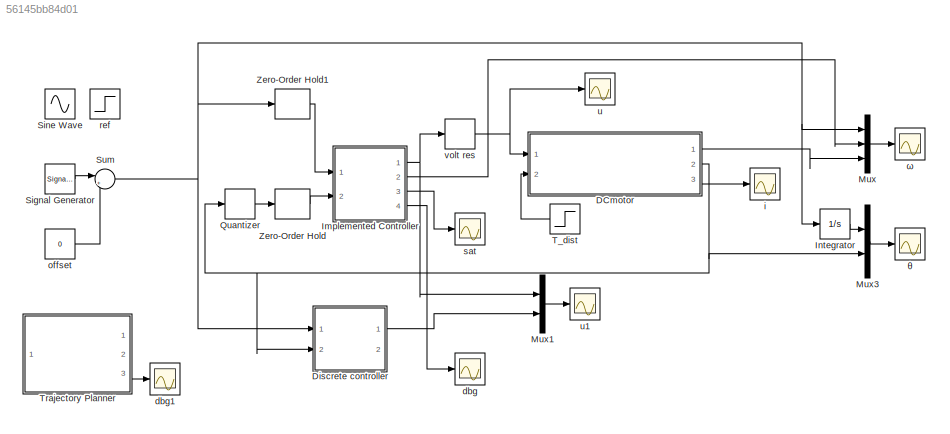
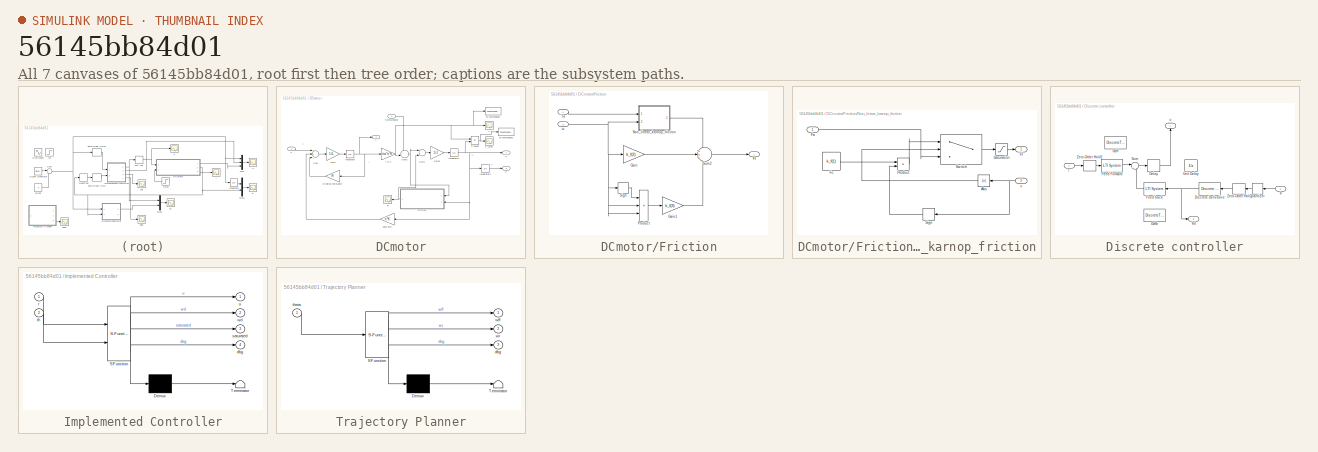
[diagram: thumbnail index - all 7 canvases of the model, root first then tree order]
MODEL slx_56145bb84d01
KIND model
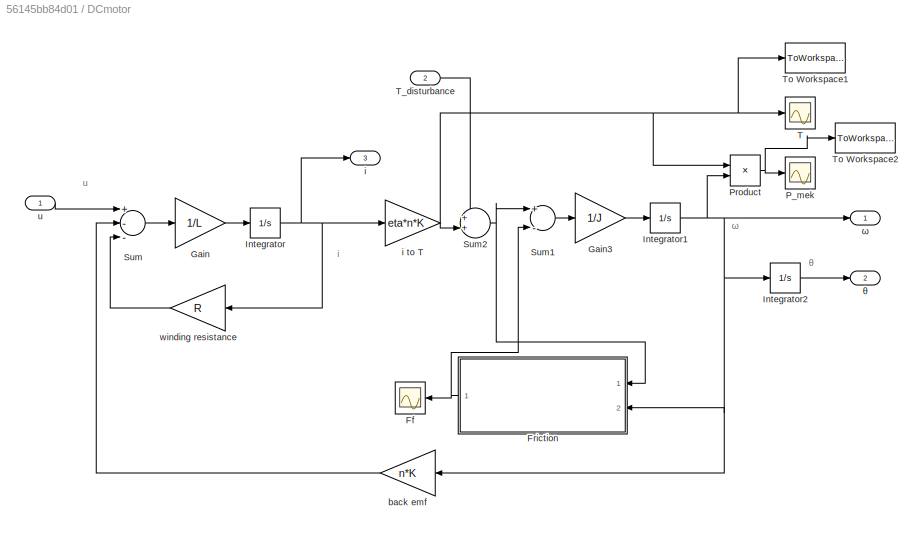
BLOCK [SubSystem] DCmotor
  Ports = [2, 3]
  RequestExecContextInheritance = off
BLOCK [Scope] DCmotor/Ff
  Floating = off
  LimitDataPoints = off
  NumInputPorts = 1
  Ports = [1]
  SaveName = ScopeData5
  ShowLegends = off
  ZoomMode = yonly
BLOCK [SubSystem] DCmotor/Friction
  Ports = [2, 1]
  RequestExecContextInheritance = off
BLOCK [Outport] DCmotor/Friction/Ff
  IconDisplay = Port number
BLOCK [Gain] DCmotor/Friction/Gain
  Gain = k_f(2)
  OutDataTypeStr = Inherit: Inherit via internal rule
  ParamDataTypeStr = Inherit: Inherit via internal rule
  SaturateOnIntegerOverflow = off
BLOCK [Gain] DCmotor/Friction/Gain1
  Gain = k_f(3)
  OutDataTypeStr = Inherit: Inherit via internal rule
  ParamDataTypeStr = Inherit: Inherit via internal rule
  SaturateOnIntegerOverflow = off
BLOCK [SubSystem] DCmotor/Friction/Non_linear_karnop_friction
  Ports = [2, 1]
  RequestExecContextInheritance = off
BLOCK [Abs] DCmotor/Friction/Non_linear_karnop_friction/Abs
  SaturateOnIntegerOverflow = off
BLOCK [Inport] DCmotor/Friction/Non_linear_karnop_friction/Fa
  IconDisplay = Port number
BLOCK [Constant] DCmotor/Friction/Non_linear_karnop_friction/Fc
  Value = k_f(1)
BLOCK [Outport] DCmotor/Friction/Non_linear_karnop_friction/Ff
  IconDisplay = Port number
BLOCK [Product] DCmotor/Friction/Non_linear_karnop_friction/Product
  InputSameDT = off
  OutDataTypeStr = Inherit: Inherit via internal rule
  Ports = [2, 1]
  SaturateOnIntegerOverflow = off
BLOCK [Saturate] DCmotor/Friction/Non_linear_karnop_friction/Saturation
  InputPortMap = u0
  LowerLimit = -k_f(1)
  Ports = [1, 1]
  UpperLimit = k_f(1)
BLOCK [Signum] DCmotor/Friction/Non_linear_karnop_friction/Sign
BLOCK [Switch] DCmotor/Friction/Non_linear_karnop_friction/Switch
  Criteria = u2 > Threshold
  InputSameDT = off
  SaturateOnIntegerOverflow = off
  Threshold = dv
BLOCK [Inport] DCmotor/Friction/Non_linear_karnop_friction/v
  IconDisplay = Port number
  Port = 2
BLOCK [Product] DCmotor/Friction/Product
  InputSameDT = off
  Inputs = 3
  OutDataTypeStr = Inherit: Inherit via internal rule
  Ports = [3, 1]
  RndMeth = Floor
  SaturateOnIntegerOverflow = off
BLOCK [Signum] DCmotor/Friction/Sign
BLOCK [Sum] DCmotor/Friction/Sum2
  IconShape = round
  InputSameDT = off
  Inputs = +++
  OutDataTypeStr = Inherit: Inherit via internal rule
  Ports = [3, 1]
  SaturateOnIntegerOverflow = off
BLOCK [Inport] DCmotor/Friction/Ta
  IconDisplay = Port number
BLOCK [Inport] DCmotor/Friction/ω
  IconDisplay = Port number
  Port = 2
BLOCK [Gain] DCmotor/Gain
  Gain = 1/L
  OutDataTypeStr = Inherit: Inherit via internal rule
  ParamDataTypeStr = Inherit: Inherit via internal rule
  SaturateOnIntegerOverflow = off
BLOCK [Gain] DCmotor/Gain3
  Gain = 1/J
  OutDataTypeStr = Inherit: Inherit via internal rule
  ParamDataTypeStr = Inherit: Inherit via internal rule
  SaturateOnIntegerOverflow = off
BLOCK [Integrator] DCmotor/Integrator
  Ports = [1, 1]
BLOCK [Integrator] DCmotor/Integrator1
  Ports = [1, 1]
BLOCK [Integrator] DCmotor/Integrator2
  Ports = [1, 1]
BLOCK [Scope] DCmotor/P_mek
  Floating = off
  LimitDataPoints = off
  NumInputPorts = 1
  Ports = [1]
  SaveName = ScopeData8
  ShowLegends = off
  ZoomMode = xonly
BLOCK [Product] DCmotor/Product
  InputSameDT = off
  OutDataTypeStr = Inherit: Inherit via internal rule
  Ports = [2, 1]
  RndMeth = Floor
  SaturateOnIntegerOverflow = off
BLOCK [Sum] DCmotor/Sum
  InputSameDT = off
  Inputs = +--
  OutDataTypeStr = Inherit: Inherit via internal rule
  Ports = [3, 1]
  SaturateOnIntegerOverflow = off
BLOCK [Sum] DCmotor/Sum1
  InputSameDT = off
  Inputs = +-
  OutDataTypeStr = Inherit: Inherit via internal rule
  Ports = [2, 1]
  SaturateOnIntegerOverflow = off
BLOCK [Sum] DCmotor/Sum2
  IconShape = round
  InputSameDT = off
  Inputs = ++|
  OutDataTypeStr = Inherit: Inherit via internal rule
  Ports = [2, 1]
  SaturateOnIntegerOverflow = off
BLOCK [Scope] DCmotor/T
  Floating = off
  LimitDataPoints = off
  NumInputPorts = 1
  Ports = [1]
  SaveName = ScopeData7
  ShowLegends = off
  ZoomMode = yonly
BLOCK [Inport] DCmotor/T_disturbance
  IconDisplay = Port number
  Port = 2
BLOCK [ToWorkspace] DCmotor/To Workspace1
  FixptAsFi = on
  MaxDataPoints = inf
  Ports = [1]
  SampleTime = 1/100
  Save2DSignal = 2-D array (concatenate along first dimension)
  VariableName = Tout
BLOCK [ToWorkspace] DCmotor/To Workspace2
  FixptAsFi = on
  MaxDataPoints = inf
  Ports = [1]
  SampleTime = 1/100
  Save2DSignal = 2-D array (concatenate along first dimension)
  VariableName = Pout
BLOCK [Gain] DCmotor/back emf
  Gain = n*K
  OutDataTypeStr = Inherit: Inherit via internal rule
  ParamDataTypeStr = Inherit: Inherit via internal rule
  SaturateOnIntegerOverflow = off
BLOCK [Outport] DCmotor/i
  IconDisplay = Port number
  Port = 3
BLOCK [Gain] DCmotor/i to T
  Gain = eta*n*K
  OutDataTypeStr = Inherit: Inherit via internal rule
  ParamDataTypeStr = Inherit: Inherit via internal rule
  SaturateOnIntegerOverflow = off
BLOCK [Inport] DCmotor/u
  IconDisplay = Port number
BLOCK [Gain] DCmotor/winding resistance
  Gain = R
  OutDataTypeStr = Inherit: Inherit via internal rule
  ParamDataTypeStr = Inherit: Inherit via internal rule
  SaturateOnIntegerOverflow = off
BLOCK [Outport] DCmotor/θ
  IconDisplay = Port number
  Port = 2
BLOCK [Outport] DCmotor/ω
  IconDisplay = Port number
BLOCK [SubSystem] Discrete controller
  Commented = on
  Ports = [2, 2]
  RequestExecContextInheritance = off
BLOCK [Delay] Discrete controller/Delay
  DelayLength = 1
  InputPortMap = u0
  Ports = [1, 1]
BLOCK [Reference] Discrete controller/Discrete Derivative  REF=simulink/Discrete/Discrete Derivative
  DoSatur = off
  ICPrevScaledInput = 0.0
  InputProcessing = Inherited
  LockScale = off
  OutDataType = fixdt(1, 16)
  OutDataTypeStr = Inherit: Inherit via internal rule
  OutMax = []
  OutMin = []
  OutScaling = 2^-10
  OutputDataTypeScalingMode = Inherit via internal rule
  Ports = [1, 1]
  RndMeth = Floor
  SourceBlock = simulink/Discrete/Discrete Derivative
  SourceType = Discrete Derivative
  gainval = 1.0
BLOCK [Reference] Discrete controller/Feed Forward  REF=cstblocks/LTI System
  IC = []
  Ports = [1, 1]
  SourceBlock = cstblocks/LTI System
  SourceType = LTI Block
  sys = Gdff
BLOCK [Reference] Discrete controller/Feed back  REF=cstblocks/LTI System
  IC = []
  Ports = [1, 1]
  SourceBlock = cstblocks/LTI System
  SourceType = LTI Block
  sys = Gdfb
BLOCK [DiscreteTransferFcn] Discrete controller/Gdfb
  Commented = on
  Denominator = DEN{1}
  InputPortMap = u0
  Numerator = NUMfb{1}
  Ports = [1, 1]
BLOCK [DiscreteTransferFcn] Discrete controller/Gdff
  Commented = on
  Denominator = DEN{1}
  InputPortMap = u0
  Numerator = NUMff{1}
  Ports = [1, 1]
BLOCK [Quantizer] Discrete controller/Quantizer
  QuantizationInterval = enc_res
BLOCK [Sum] Discrete controller/Sum
  IconShape = round
  InputSameDT = off
  Inputs = |+-
  OutDataTypeStr = Inherit: Inherit via internal rule
  Ports = [2, 1]
  SaturateOnIntegerOverflow = off
BLOCK [UnitDelay] Discrete controller/Unit Delay
  Commented = on
  InputProcessing = Elements as channels (sample based)
  SampleTime = -1
BLOCK [ZeroOrderHold] Discrete controller/Zero-Order Hold
  SampleTime = Ts
BLOCK [ZeroOrderHold] Discrete controller/Zero-Order Hold1
  SampleTime = Ts
BLOCK [Inport] Discrete controller/r
  IconDisplay = Port number
BLOCK [Outport] Discrete controller/u
  IconDisplay = Port number
BLOCK [Inport] Discrete controller/θ
  IconDisplay = Port number
  Port = 2
BLOCK [Outport] Discrete controller/θd
  IconDisplay = Port number
  Port = 2
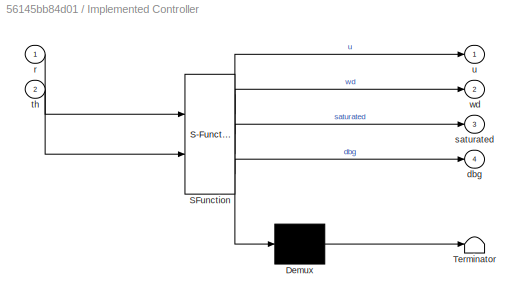
BLOCK [SubSystem] Implemented Controller
  ErrorFcn = Stateflow.Translate.translate
  PermitHierarchicalResolution = ExplicitOnly
  Ports = [2, 4]
  RequestExecContextInheritance = off
  SFBlockType = MATLAB Function
  TreatAsAtomicUnit = on
BLOCK [Demux] Implemented Controller/ Demux 
  Outputs = 1
  Ports = [1, 1]
BLOCK [S-Function] Implemented Controller/ SFunction 
  EnableBusSupport = on
  FunctionName = sf_sfun
  PortCounts = [2 5]
  Ports = [2, 5]
  Tag = Stateflow S-Function implementation 2
BLOCK [Terminator] Implemented Controller/ Terminator 
BLOCK [Outport] Implemented Controller/dbg
  IconDisplay = Port number
  Port = 4
BLOCK [Inport] Implemented Controller/r
  IconDisplay = Port number
BLOCK [Outport] Implemented Controller/saturated
  IconDisplay = Port number
  Port = 3
BLOCK [Inport] Implemented Controller/th
  IconDisplay = Port number
  Port = 2
BLOCK [Outport] Implemented Controller/u
  IconDisplay = Port number
BLOCK [Outport] Implemented Controller/wd
  IconDisplay = Port number
  Port = 2
BLOCK [Integrator] Integrator
  Ports = [1, 1]
BLOCK [Mux] Mux
  DisplayOption = bar
  Inputs = 3
  Ports = [3, 1]
BLOCK [Mux] Mux1
  Commented = on
  DisplayOption = bar
  Inputs = 2
  Ports = [2, 1]
BLOCK [Mux] Mux3
  DisplayOption = bar
  Inputs = 2
  Ports = [2, 1]
BLOCK [Quantizer] Quantizer
  QuantizationInterval = enc_res
BLOCK [SignalGenerator] Signal Generator
  Amplitude = 2
  Ports = [0, 1]
  WaveForm = square
BLOCK [Sin] Sine Wave
  Amplitude = 2
  Commented = on
  Frequency = 2*pi/4
  Ports = [0, 1]
  SampleTime = 0
BLOCK [Sum] Sum
  IconShape = round
  InputSameDT = off
  Inputs = |++
  OutDataTypeStr = Inherit: Inherit via internal rule
  Ports = [2, 1]
  SaturateOnIntegerOverflow = off
BLOCK [Step] T_dist
  After = 0
  SampleTime = 0
  Time = 2
BLOCK [SubSystem] Trajectory Planner
  Commented = on
  ErrorFcn = Stateflow.Translate.translate
  PermitHierarchicalResolution = ExplicitOnly
  Ports = [1, 3]
  RequestExecContextInheritance = off
  SFBlockType = MATLAB Function
  TreatAsAtomicUnit = on
BLOCK [Demux] Trajectory Planner/ Demux 
  Outputs = 1
  Ports = [1, 1]
BLOCK [S-Function] Trajectory Planner/ SFunction 
  EnableBusSupport = on
  FunctionName = sf_sfun
  PortCounts = [1 4]
  Ports = [1, 4]
  Tag = Stateflow S-Function implementation 1
BLOCK [Terminator] Trajectory Planner/ Terminator 
BLOCK [Outport] Trajectory Planner/dbg
  IconDisplay = Port number
  Port = 3
BLOCK [Inport] Trajectory Planner/theta
  IconDisplay = Port number
BLOCK [Outport] Trajectory Planner/wff
  IconDisplay = Port number
BLOCK [Outport] Trajectory Planner/wr
  IconDisplay = Port number
  Port = 2
BLOCK [ZeroOrderHold] Zero-Order Hold
  SampleTime = Ts
BLOCK [ZeroOrderHold] Zero-Order Hold1
  SampleTime = Ts
BLOCK [Scope] dbg
  Floating = off
  LimitDataPoints = off
  NumInputPorts = 1
  Ports = [1]
  SaveName = ScopeData9
  ShowLegends = off
  ZoomMode = xonly
BLOCK [Scope] dbg1
  Commented = on
  Floating = off
  LimitDataPoints = off
  NumInputPorts = 1
  Ports = [1]
  SaveName = ScopeData10
  ShowLegends = off
  TimeRange = 0.1147540983606558
  YMax = 1
  YMin = -1
  ZoomMode = xonly
BLOCK [Scope] i
  Floating = off
  LimitDataPoints = off
  NumInputPorts = 1
  Ports = [1]
  SaveName = ScopeData2
  ShowLegends = off
  ZoomMode = xonly
BLOCK [Constant] offset
  Value = 0
BLOCK [Step] ref
  After = -2
  Commented = on
  SampleTime = 0
  Time = 0
BLOCK [Scope] sat
  Floating = off
  LimitDataPoints = off
  NumInputPorts = 1
  Ports = [1]
  SaveName = ScopeData4
  ShowLegends = off
  ZoomMode = xonly
BLOCK [Scope] u
  Floating = off
  LimitDataPoints = off
  NumInputPorts = 1
  Ports = [1]
  SaveName = ScopeData1
  ShowLegends = off
  ZoomMode = xonly
BLOCK [Scope] u1
  Commented = on
  Floating = off
  LimitDataPoints = off
  NumInputPorts = 1
  Ports = [1]
  SaveName = ScopeData3
  ShowLegends = off
  ZoomMode = yonly
BLOCK [Quantizer] volt res
  QuantizationInterval = volt_res
BLOCK [Scope] θ
  Floating = off
  LimitDataPoints = off
  NumInputPorts = 1
  Ports = [1]
  SaveName = ScopeData6
  ShowLegends = off
BLOCK [Scope] ω
  Floating = off
  LimitDataPoints = off
  NumInputPorts = 1
  Ports = [1]
  ShowLegends = off
  ZoomMode = xonly
ANNOTATION DCmotor: i
ANNOTATION DCmotor: u
ANNOTATION DCmotor: θ
ANNOTATION DCmotor: ω
LINE DCmotor/Friction/Gain1:1 -> DCmotor/Friction/Sum2:3
LINE DCmotor/Friction/Gain:1 -> DCmotor/Friction/Sum2:2
LINE DCmotor/Friction/Non_linear_karnop_friction/Abs:1 -> DCmotor/Friction/Non_linear_karnop_friction/Switch:2
LINE DCmotor/Friction/Non_linear_karnop_friction/Fa:1 -> DCmotor/Friction/Non_linear_karnop_friction/Switch:3
LINE DCmotor/Friction/Non_linear_karnop_friction/Fc:1 -> DCmotor/Friction/Non_linear_karnop_friction/Product:1
LINE DCmotor/Friction/Non_linear_karnop_friction/Product:1 -> DCmotor/Friction/Non_linear_karnop_friction/Switch:1
LINE DCmotor/Friction/Non_linear_karnop_friction/Saturation:1 -> DCmotor/Friction/Non_linear_karnop_friction/Ff:1
LINE DCmotor/Friction/Non_linear_karnop_friction/Sign:1 -> DCmotor/Friction/Non_linear_karnop_friction/Product:2
LINE DCmotor/Friction/Non_linear_karnop_friction/Switch:1 -> DCmotor/Friction/Non_linear_karnop_friction/Saturation:1
NET DCmotor/Friction/Non_linear_karnop_friction/v:1 -> DCmotor/Friction/Non_linear_karnop_friction/Abs:1, DCmotor/Friction/Non_linear_karnop_friction/Sign:1
LINE DCmotor/Friction/Non_linear_karnop_friction:1 -> DCmotor/Friction/Sum2:1
LINE DCmotor/Friction/Product:1 -> DCmotor/Friction/Gain1:1
LINE DCmotor/Friction/Sign:1 -> DCmotor/Friction/Product:1
LINE DCmotor/Friction/Sum2:1 -> DCmotor/Friction/Ff:1
LINE DCmotor/Friction/Ta:1 -> DCmotor/Friction/Non_linear_karnop_friction:1
NET DCmotor/Friction/ω:1 -> DCmotor/Friction/Gain:1, DCmotor/Friction/Non_linear_karnop_friction:2, DCmotor/Friction/Product:2, DCmotor/Friction/Product:3, DCmotor/Friction/Sign:1
NET DCmotor/Friction:1 -> DCmotor/Ff:1, DCmotor/Sum1:2
LINE DCmotor/Gain3:1 -> DCmotor/Integrator1:1
LINE DCmotor/Gain:1 -> DCmotor/Integrator:1
NET DCmotor/Integrator1:1 -> DCmotor/Friction:2, DCmotor/Integrator2:1, DCmotor/Product:2, DCmotor/back emf:1, DCmotor/ω:1
LINE DCmotor/Integrator2:1 -> DCmotor/θ:1
NET DCmotor/Integrator:1 -> DCmotor/i to T:1, DCmotor/i:1, DCmotor/winding resistance:1
NET DCmotor/Product:1 -> DCmotor/P_mek:1, DCmotor/To Workspace2:1
LINE DCmotor/Sum1:1 -> DCmotor/Gain3:1
NET DCmotor/Sum2:1 -> DCmotor/Friction:1, DCmotor/Sum1:1
LINE DCmotor/Sum:1 -> DCmotor/Gain:1
LINE DCmotor/T_disturbance:1 -> DCmotor/Sum2:1
LINE DCmotor/back emf:1 -> DCmotor/Sum:2
NET DCmotor/i to T:1 -> DCmotor/Product:1, DCmotor/Sum2:2, DCmotor/T:1, DCmotor/To Workspace1:1
LINE DCmotor/u:1 -> DCmotor/Sum:1
LINE DCmotor/winding resistance:1 -> DCmotor/Sum:3
LINE DCmotor:1 -> Mux:3
NET DCmotor:2 -> Discrete controller:2, Mux3:2, Quantizer:1
LINE DCmotor:3 -> i:1
LINE Discrete controller/Delay:1 -> Discrete controller/u:1
NET Discrete controller/Discrete Derivative:1 -> Discrete controller/Feed back:1, Discrete controller/θd:1
LINE Discrete controller/Feed Forward:1 -> Discrete controller/Sum:1
LINE Discrete controller/Feed back:1 -> Discrete controller/Sum:2
LINE Discrete controller/Quantizer:1 -> Discrete controller/Zero-Order Hold:1
LINE Discrete controller/Sum:1 -> Discrete controller/Delay:1
LINE Discrete controller/Zero-Order Hold1:1 -> Discrete controller/Feed Forward:1
LINE Discrete controller/Zero-Order Hold:1 -> Discrete controller/Discrete Derivative:1
LINE Discrete controller/r:1 -> Discrete controller/Zero-Order Hold1:1
LINE Discrete controller/θ:1 -> Discrete controller/Quantizer:1
LINE Discrete controller:1 -> Mux1:2
NET Implemented Controller:1 -> Mux1:1, volt res:1
LINE Implemented Controller:2 -> Mux:2
LINE Implemented Controller:3 -> sat:1
LINE Implemented Controller:4 -> dbg:1
LINE Integrator:1 -> Mux3:1
LINE Mux1:1 -> u1:1
LINE Mux3:1 -> θ:1
LINE Mux:1 -> ω:1
LINE Quantizer:1 -> Zero-Order Hold:1
LINE Signal Generator:1 -> Sum:1
NET Sum:1 -> Discrete controller:1, Integrator:1, Mux:1, Zero-Order Hold1:1
LINE T_dist:1 -> DCmotor:2
LINE Trajectory Planner:3 -> dbg1:1
LINE Zero-Order Hold1:1 -> Implemented Controller:1
LINE Zero-Order Hold:1 -> Implemented Controller:2
LINE offset:1 -> Sum:2
NET volt res:1 -> DCmotor:1, u:1
note: NET lines group one-source signal fan-out (src -> all destinations, sorted); 1:1 wires keep LINE
CHART Trajectory Planner states=1 transitions=1
  STATE_LABEL 'eML_blk_kernel()'
  STATE_LABEL 'SCRIPT:\nfunction [wff,wr,dbg] = fcn(theta)\n% Trajectory planning for a speed controller\npersistent theta_goal w_ff state theta_tot T_on prev_err cum_err dbg_val\npersistent w_acc w_trans Ts P I D % Constants\nif isempty(w_ff) % init traj planner\n    % Inputs and stuff that may change\n    theta_goal = 3;\n    w_ff = 0;\n    state = 3; % 0 = acc to w_trans, 1 = steady speed, 2 = decelerate to 0, 3 = kee...<+2342ch>'
CHART Implemented Controller states=1 transitions=1
  STATE_LABEL 'eML_blk_kernel()'
  STATE_LABEL 'SCRIPT:\nfunction [u,wd,saturated,dbg] = fcn(r,th)\npersistent uout old_y old_r old_uff old_ufb prev_th I_ff I_fb old_spd issat\npersistent cMode Ts nd d nc c nf f Id umax imax K R n% Constants\nif isempty(uout) % init\n    uout = 0; issat = 0;\n    old_y = zeros(1,4); old_r = zeros(1,4);\n    old_uff = zeros(1,4); old_ufb = zeros(1,4);\n    prev_th = 0; I_ff = 0; I_fb = 0;\n    old_spd = 0;\n    % Generate...<+2962ch>'
